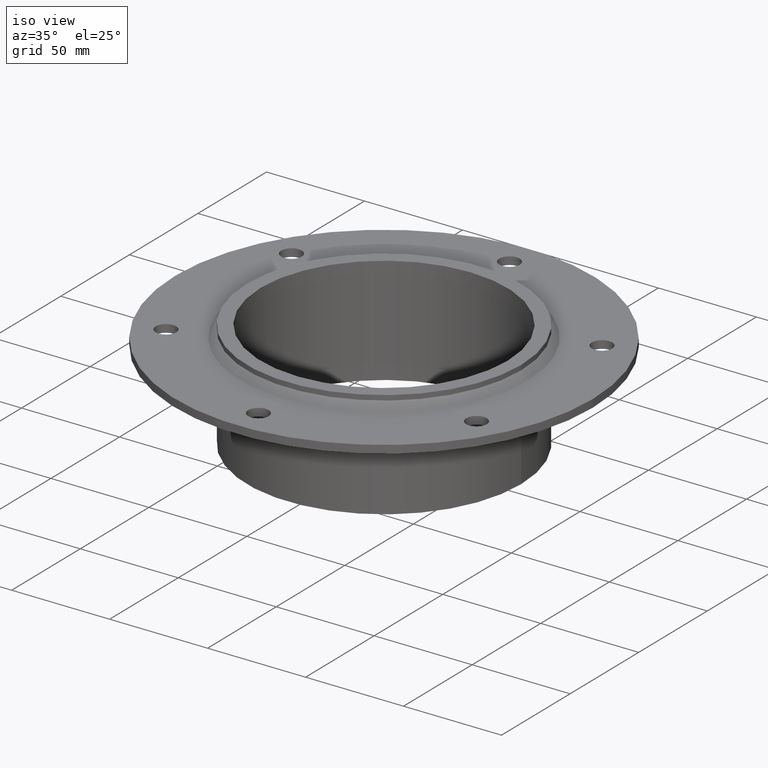
[diagram: clean part render]
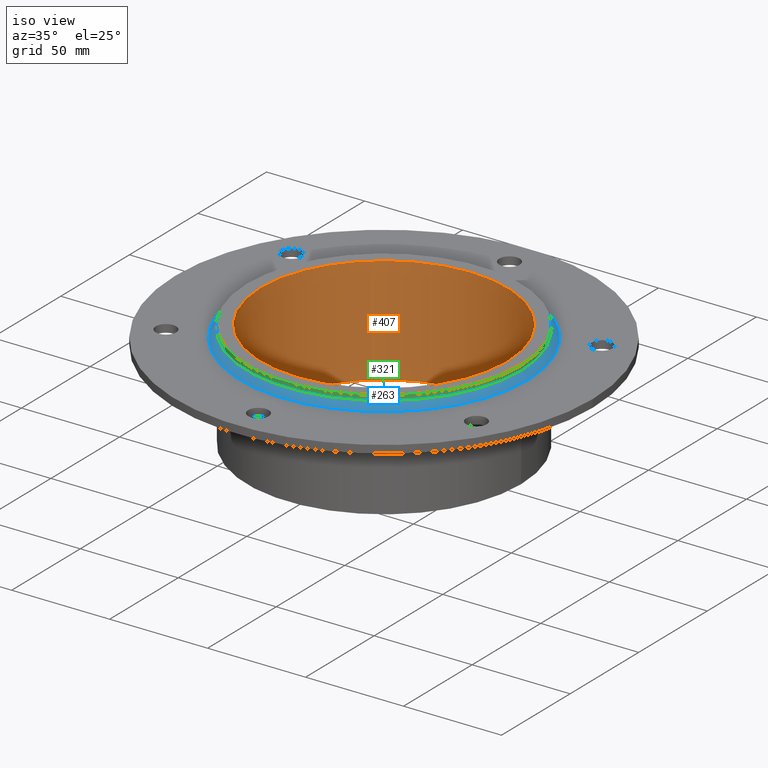
[diagram: same view with three faces highlighted in distinct colors, each labeled with its STEP entity id]
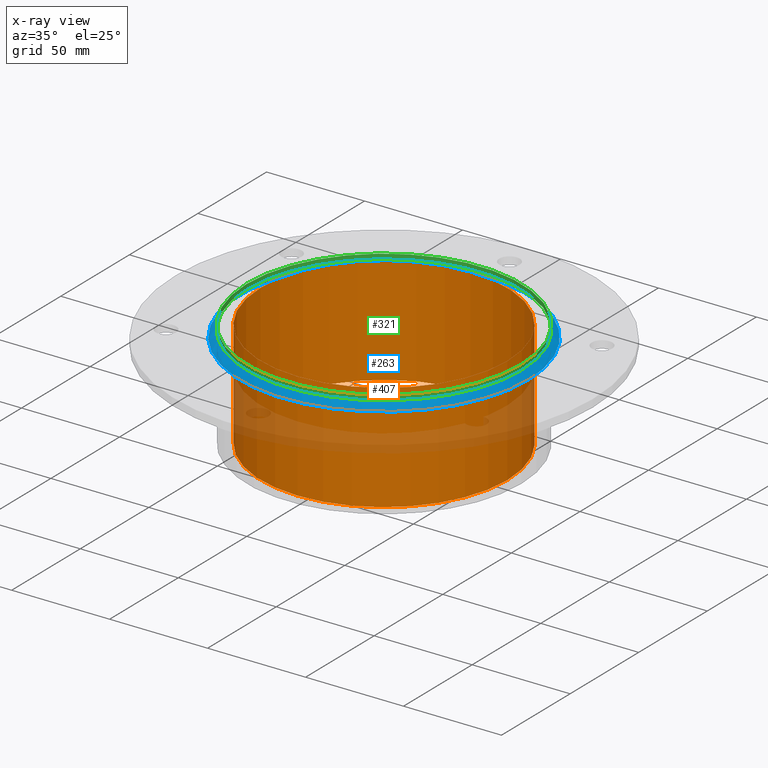
[diagram: x-ray of the same camera — body ghosted, the three highlighted faces saturated]
A machine part, iso view with three faces highlighted in distinct colors.
The next image is the same camera in x-ray (body ghosted, the three faces saturated) — at least one of them is partly hidden behind the body in this view.
Their STEP definitions:

[orange] entity #407 — the highlighted cylindrical surface (bore or boss wall) has radius 63 mm, axis along (0, 0, 1).
#380=CARTESIAN_POINT('',(0.0,0.0,-205.48722588034519));
#381=DIRECTION('',(0.0,0.0,1.0));
#382=DIRECTION('',(1.0,0.0,0.0));
#383=AXIS2_PLACEMENT_3D('',#380,#381,#382);
#384=CYLINDRICAL_SURFACE('',#383,63.000000000000028);
#385=CARTESIAN_POINT('',(-63.000000000000028,-7.715275E-015,-55.0));
#386=VERTEX_POINT('',#385);
#387=CARTESIAN_POINT('',(0.0,0.0,-55.0));
#388=DIRECTION('',(0.0,0.0,1.0));
#389=DIRECTION('',(1.0,0.0,0.0));
#390=AXIS2_PLACEMENT_3D('',#387,#388,#389);
#391=CIRCLE('',#390,63.000000000000028);
#392=EDGE_CURVE('',#386,#386,#391,.T.);
#393=ORIENTED_EDGE('',*,*,#392,.F.);
#394=EDGE_LOOP('',(#393));
#395=FACE_OUTER_BOUND('',#394,.T.);
#396=CARTESIAN_POINT('',(63.000000000000028,0.0,0.0));
#397=VERTEX_POINT('',#396);
#398=CARTESIAN_POINT('',(0.0,0.0,0.0));
#399=DIRECTION('',(0.0,0.0,-1.0));
#400=DIRECTION('',(1.0,0.0,0.0));
#401=AXIS2_PLACEMENT_3D('',#398,#399,#400);
#402=CIRCLE('',#401,63.000000000000028);
#403=EDGE_CURVE('',#397,#397,#402,.T.);
#404=ORIENTED_EDGE('',*,*,#403,.F.);
#405=EDGE_LOOP('',(#404));
#406=FACE_BOUND('',#405,.T.);
#407=ADVANCED_FACE('',(#395,#406),#384,.F.);

[blue] entity #263 — the highlighted conical surface has half-angle 45 deg.
#236=CARTESIAN_POINT('',(0.0,0.0,-4.250000000000002));
#237=DIRECTION('',(0.0,0.0,-1.0));
#238=DIRECTION('',(-1.0,0.0,0.0));
#239=AXIS2_PLACEMENT_3D('',#236,#237,#238);
#240=CONICAL_SURFACE('',#239,71.75,44.999999999999979);
#241=CARTESIAN_POINT('',(73.5,9.001154E-015,-6.000000000000002));
#242=VERTEX_POINT('',#241);
#243=CARTESIAN_POINT('',(0.0,0.0,-6.000000000000002));
#244=DIRECTION('',(0.0,0.0,1.0));
#245=DIRECTION('',(-1.0,0.0,0.0));
#246=AXIS2_PLACEMENT_3D('',#243,#244,#245);
#247=CIRCLE('',#246,73.5);
#248=EDGE_CURVE('',#242,#242,#247,.T.);
#249=ORIENTED_EDGE('',*,*,#248,.T.);
#250=EDGE_LOOP('',(#249));
#251=FACE_OUTER_BOUND('',#250,.T.);
#252=CARTESIAN_POINT('',(70.0,-8.572528E-015,-2.500000000000002));
#253=VERTEX_POINT('',#252);
#254=CARTESIAN_POINT('',(0.0,0.0,-2.500000000000002));
#255=DIRECTION('',(0.0,0.0,-1.0));
#256=DIRECTION('',(-1.0,0.0,0.0));
#257=AXIS2_PLACEMENT_3D('',#254,#255,#256);
#258=CIRCLE('',#257,70.0);
#259=EDGE_CURVE('',#253,#253,#258,.T.);
#260=ORIENTED_EDGE('',*,*,#259,.T.);
#261=EDGE_LOOP('',(#260));
#262=FACE_BOUND('',#261,.T.);
#263=ADVANCED_FACE('',(#251,#262),#240,.T.);

[green] entity #321 — the highlighted cylindrical surface (bore or boss wall) has radius 70 mm, axis along (0, 0, -1).
#252=CARTESIAN_POINT('',(70.0,-8.572528E-015,-2.500000000000002));
#253=VERTEX_POINT('',#252);
#254=CARTESIAN_POINT('',(0.0,0.0,-2.500000000000002));
#255=DIRECTION('',(0.0,0.0,-1.0));
#256=DIRECTION('',(-1.0,0.0,0.0));
#257=AXIS2_PLACEMENT_3D('',#254,#255,#256);
#258=CIRCLE('',#257,70.0);
#259=EDGE_CURVE('',#253,#253,#258,.T.);
#302=CARTESIAN_POINT('',(0.0,0.0,0.0));
#303=DIRECTION('',(0.0,0.0,-1.0));
#304=DIRECTION('',(-1.0,0.0,0.0));
#305=AXIS2_PLACEMENT_3D('',#302,#303,#304);
#306=CYLINDRICAL_SURFACE('',#305,70.0);
#307=CARTESIAN_POINT('',(70.0,8.572528E-015,0.0));
#308=VERTEX_POINT('',#307);
#309=CARTESIAN_POINT('',(0.0,0.0,0.0));
#310=DIRECTION('',(0.0,0.0,-1.0));
#311=DIRECTION('',(-1.0,0.0,0.0));
#312=AXIS2_PLACEMENT_3D('',#309,#310,#311);
#313=CIRCLE('',#312,70.0);
#314=EDGE_CURVE('',#308,#308,#313,.T.);
#315=ORIENTED_EDGE('',*,*,#314,.T.);
#316=EDGE_LOOP('',(#315));
#317=FACE_OUTER_BOUND('',#316,.T.);
#318=ORIENTED_EDGE('',*,*,#259,.F.);
#319=EDGE_LOOP('',(#318));
#320=FACE_BOUND('',#319,.T.);
#321=ADVANCED_FACE('',(#317,#320),#306,.T.);